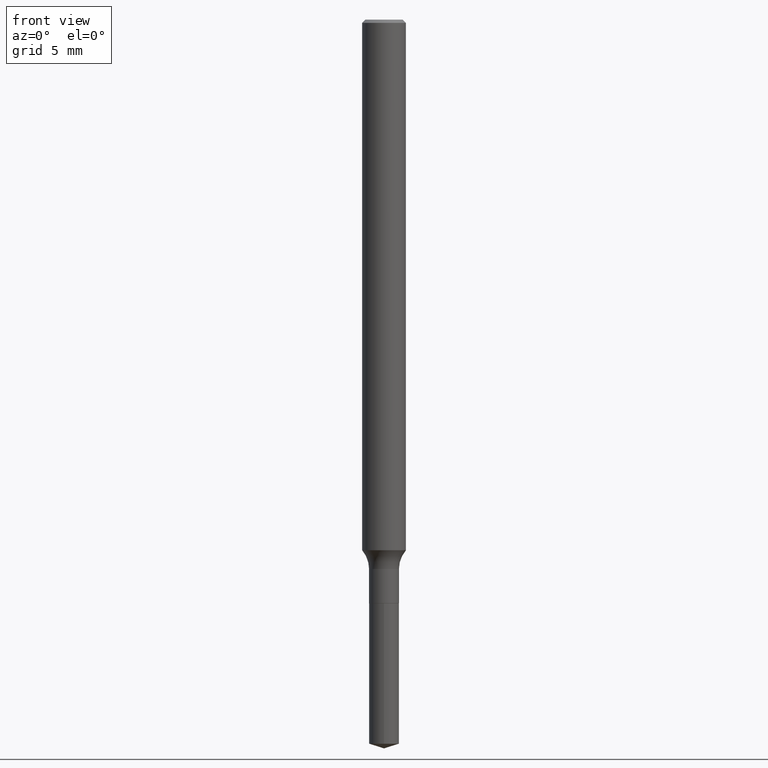
[diagram: clean part render]
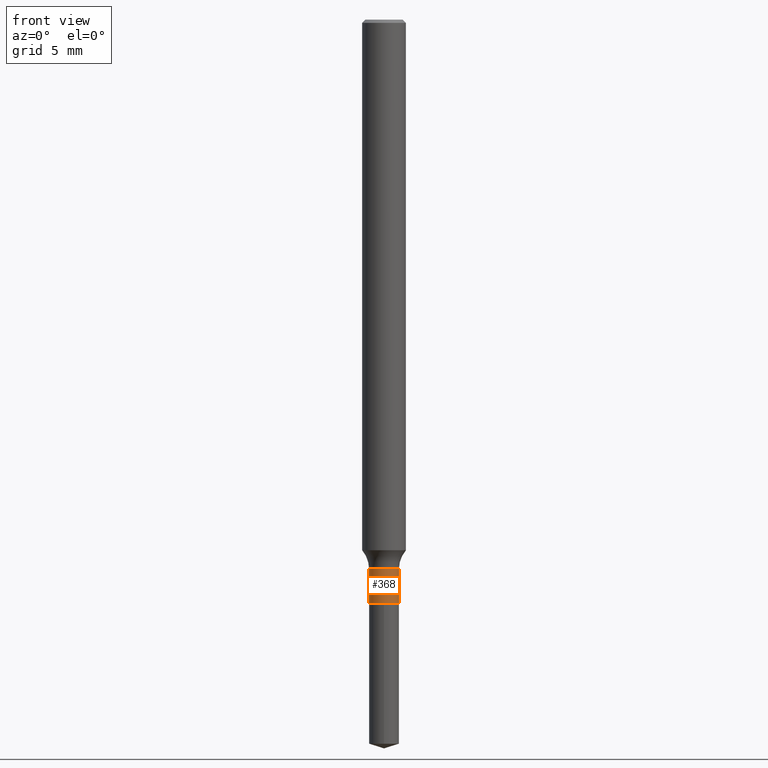
[diagram: same view with one face highlighted and labeled with its STEP entity id]
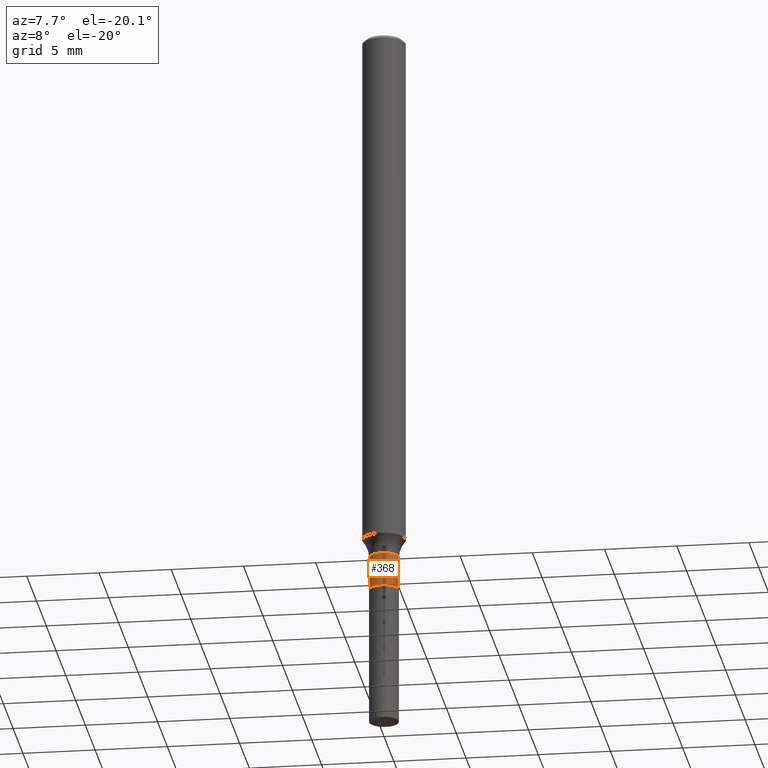
[diagram: same view with one face highlighted and labeled with its STEP entity id]
A machine part, front view. The second image highlights one B-rep face of the part: STEP entity #368.
A second angle (auxiliary view) of the same face is appended — the face is thin or edge-on in the first view.
In plain terms, the highlighted cylindrical surface (edge-blend (fillet) strip) has radius 1.0249 mm, axis along (-0, 0, 1).
Its self-contained STEP definition (entity closure, byte-faithful):
#19 = VERTEX_POINT ( 'NONE', #69 ) ;
#23 = EDGE_CURVE ( 'NONE', #19, #361, #413, .T. ) ;
#34 = AXIS2_PLACEMENT_3D ( 'NONE', #284, #395, #463 ) ;
#38 = VERTEX_POINT ( 'NONE', #262 ) ;
#56 = ORIENTED_EDGE ( 'NONE', *, *, #299, .F. ) ;
#58 = CARTESIAN_POINT ( 'NONE',  ( 0.000000000000000000, 0.000000000000000000, 0.000000000000000000 ) ) ;
#61 = DIRECTION ( 'NONE',  ( 1.000000000000000000, -6.982962677686265133E-15, 4.876176775795935232E-29 ) ) ;
#69 = CARTESIAN_POINT ( 'NONE',  ( 0.04034999999999999004, -5.785384578463091597E-15, -1.576300000000000034 ) ) ;
#78 = CARTESIAN_POINT ( 'NONE',  ( -0.04034999999999999004, 2.867039938792003542E-16, -1.984790308917854021E-30 ) ) ;
#84 = EDGE_CURVE ( 'NONE', #393, #19, #218, .T. ) ;
#155 = DIRECTION ( 'NONE',  ( -2.445468806185136877E-29, 3.491481338843145188E-15, 1.000000000000000000 ) ) ;
#205 = ORIENTED_EDGE ( 'NONE', *, *, #351, .F. ) ;
#216 = CARTESIAN_POINT ( 'NONE',  ( 0.04034999999999999004, -2.817625440446407340E-16, 1.967537329033659479E-30 ) ) ;
#218 = CIRCLE ( 'NONE', #459, 0.04034999999999999004 ) ;
#253 = CARTESIAN_POINT ( 'NONE',  ( 3.854792479189631200E-29, -5.503622034418449877E-15, -1.576300000000000034 ) ) ;
#254 = DIRECTION ( 'NONE',  ( -2.445468806185136877E-29, 3.491481338843145188E-15, 1.000000000000000000 ) ) ;
#260 = DIRECTION ( 'NONE',  ( 1.000000000000000000, -6.982962677686272233E-15, 0.000000000000000000 ) ) ;
#262 = CARTESIAN_POINT ( 'NONE',  ( -0.04034999999999999004, -5.055786176751638777E-15, -1.483999999999999986 ) ) ;
#274 = CARTESIAN_POINT ( 'NONE',  ( 0.04034999999999999004, -5.463120850887868627E-15, -1.483999999999999986 ) ) ;
#284 = CARTESIAN_POINT ( 'NONE',  ( 3.629075708378742535E-29, -5.181358306843227696E-15, -1.483999999999999986 ) ) ;
#299 = EDGE_CURVE ( 'NONE', #393, #38, #381, .T. ) ;
#318 = CARTESIAN_POINT ( 'NONE',  ( -0.04034999999999999004, -5.055786176751638777E-15, -1.576300000000000034 ) ) ;
#348 = CIRCLE ( 'NONE', #34, 0.04034999999999999004 ) ;
#351 = EDGE_CURVE ( 'NONE', #38, #361, #348, .T. ) ;
#353 = EDGE_LOOP ( 'NONE', ( #56, #456, #356, #205 ) ) ;
#356 = ORIENTED_EDGE ( 'NONE', *, *, #23, .T. ) ;
#361 = VERTEX_POINT ( 'NONE', #274 ) ;
#365 = AXIS2_PLACEMENT_3D ( 'NONE', #58, #366, #61 ) ;
#366 = DIRECTION ( 'NONE',  ( -2.445468806185136597E-29, 3.491481338843145583E-15, 1.000000000000000000 ) ) ;
#368 = ADVANCED_FACE ( 'NONE', ( #473 ), #436, .T. ) ;
#381 = LINE ( 'NONE', #78, #445 ) ;
#393 = VERTEX_POINT ( 'NONE', #318 ) ;
#395 = DIRECTION ( 'NONE',  ( -2.445468806185136597E-29, 3.491481338843145583E-15, 1.000000000000000000 ) ) ;
#413 = LINE ( 'NONE', #216, #433 ) ;
#433 = VECTOR ( 'NONE', #254, 39.37007874015748143 ) ;
#436 = CYLINDRICAL_SURFACE ( 'NONE', #365, 0.04034999999999999004 ) ;
#442 = DIRECTION ( 'NONE',  ( -2.445468806185136597E-29, 3.491481338843145583E-15, 1.000000000000000000 ) ) ;
#445 = VECTOR ( 'NONE', #155, 39.37007874015748143 ) ;
#456 = ORIENTED_EDGE ( 'NONE', *, *, #84, .T. ) ;
#459 = AXIS2_PLACEMENT_3D ( 'NONE', #253, #442, #260 ) ;
#463 = DIRECTION ( 'NONE',  ( 1.000000000000000000, -6.982962677686272233E-15, 0.000000000000000000 ) ) ;
#473 = FACE_OUTER_BOUND ( 'NONE', #353, .T. ) ;